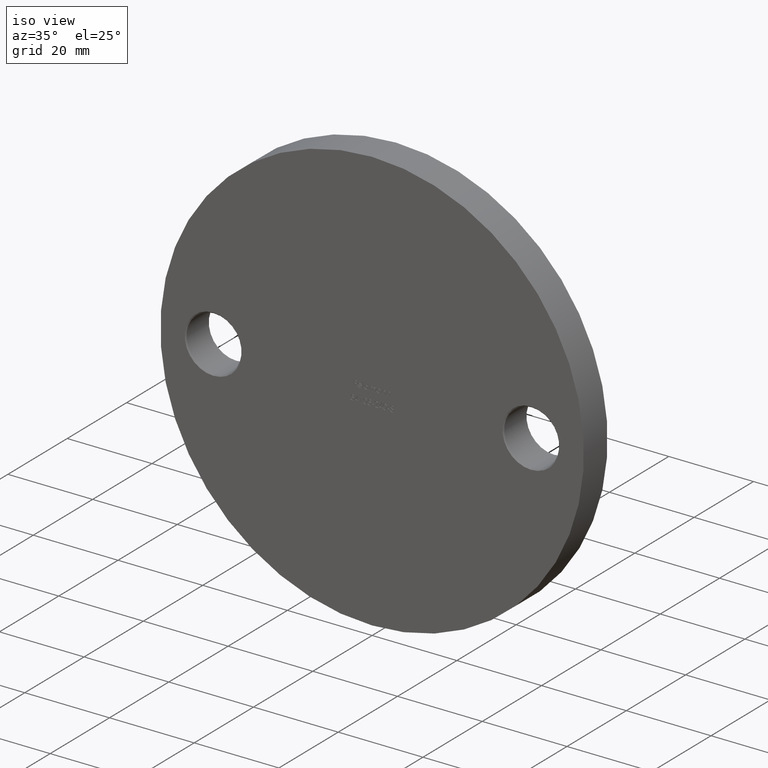
[diagram: clean part render]
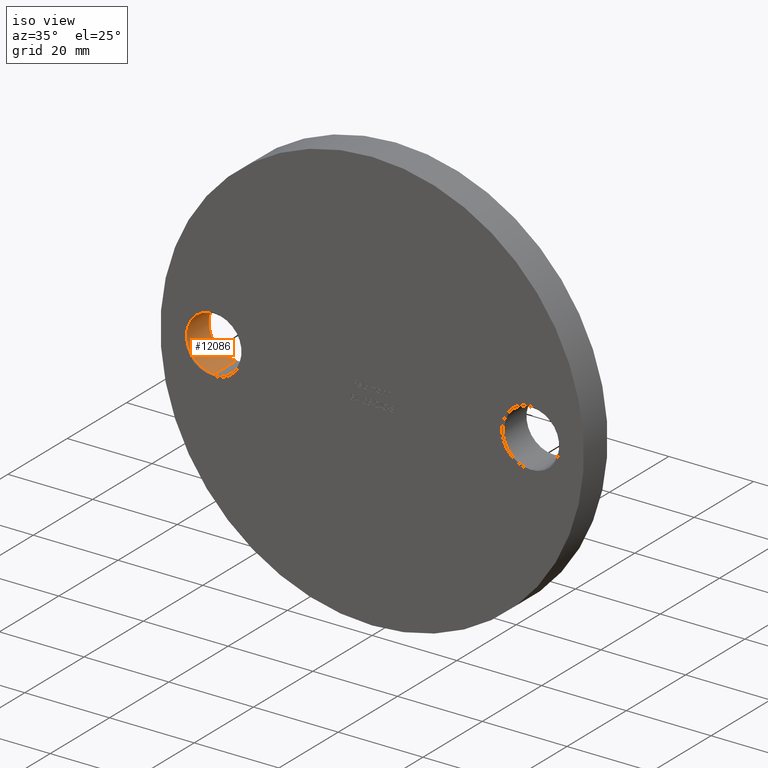
[diagram: same view with one face highlighted and labeled with its STEP entity id]
A machine part, iso view. The second image highlights one B-rep face of the part: STEP entity #12086.
In plain terms, the highlighted cylindrical surface (edge-blend (fillet) strip) has radius 6.5 mm, axis along (-0, -1, -0).
Its self-contained STEP definition (entity closure, byte-faithful):
#516 = CARTESIAN_POINT ( 'NONE',  ( -37.50000000000000000, 8.000000000000000000, 6.500000000000000888 ) ) ;
#1333 = CARTESIAN_POINT ( 'NONE',  ( -37.50000000000000000, 0.2499999999999828748, 0.000000000000000000 ) ) ;
#1733 = VERTEX_POINT ( 'NONE', #10265 ) ;
#2316 = DIRECTION ( 'NONE',  ( 0.000000000000000000, 0.000000000000000000, 1.000000000000000000 ) ) ;
#2401 = VERTEX_POINT ( 'NONE', #7417 ) ;
#2827 = DIRECTION ( 'NONE',  ( -0.000000000000000000, -1.000000000000000000, -0.000000000000000000 ) ) ;
#2939 = VECTOR ( 'NONE', #5782, 1000.000000000000000 ) ;
#2955 = LINE ( 'NONE', #516, #9566 ) ;
#3166 = EDGE_CURVE ( 'NONE', #3909, #11429, #9781, .T. ) ;
#3204 = CARTESIAN_POINT ( 'NONE',  ( -37.50000000000000000, 8.000000000000000000, 0.000000000000000000 ) ) ;
#3909 = VERTEX_POINT ( 'NONE', #10936 ) ;
#4239 = DIRECTION ( 'NONE',  ( 0.000000000000000000, 1.000000000000000000, 0.000000000000000000 ) ) ;
#4570 = ORIENTED_EDGE ( 'NONE', *, *, #3166, .T. ) ;
#4765 = DIRECTION ( 'NONE',  ( 0.000000000000000000, 0.000000000000000000, 1.000000000000000000 ) ) ;
#4811 = ORIENTED_EDGE ( 'NONE', *, *, #8444, .F. ) ;
#5428 = AXIS2_PLACEMENT_3D ( 'NONE', #1333, #8866, #2316 ) ;
#5782 = DIRECTION ( 'NONE',  ( -0.000000000000000000, -1.000000000000000000, -0.000000000000000000 ) ) ;
#5823 = LINE ( 'NONE', #13375, #2939 ) ;
#6098 = ORIENTED_EDGE ( 'NONE', *, *, #7432, .T. ) ;
#6329 = EDGE_LOOP ( 'NONE', ( #4570, #6098, #12841, #4811 ) ) ;
#7417 = CARTESIAN_POINT ( 'NONE',  ( -37.50000000000000000, 0.2499999999999828748, -6.500000000000000888 ) ) ;
#7432 = EDGE_CURVE ( 'NONE', #11429, #1733, #2955, .T. ) ;
#7821 = CARTESIAN_POINT ( 'NONE',  ( -37.50000000000000000, 7.749999999999982236, 6.500000000000000888 ) ) ;
#7967 = AXIS2_PLACEMENT_3D ( 'NONE', #3204, #8524, #9643 ) ;
#8444 = EDGE_CURVE ( 'NONE', #3909, #2401, #5823, .T. ) ;
#8524 = DIRECTION ( 'NONE',  ( -0.000000000000000000, -1.000000000000000000, -0.000000000000000000 ) ) ;
#8866 = DIRECTION ( 'NONE',  ( -0.000000000000000000, -1.000000000000000000, -0.000000000000000000 ) ) ;
#9566 = VECTOR ( 'NONE', #2827, 1000.000000000000000 ) ;
#9643 = DIRECTION ( 'NONE',  ( 0.000000000000000000, 0.000000000000000000, -1.000000000000000000 ) ) ;
#9781 = CIRCLE ( 'NONE', #10273, 6.500000000000000888 ) ;
#10265 = CARTESIAN_POINT ( 'NONE',  ( -37.50000000000000000, 0.2499999999999828748, 6.500000000000000888 ) ) ;
#10273 = AXIS2_PLACEMENT_3D ( 'NONE', #10724, #4239, #4765 ) ;
#10724 = CARTESIAN_POINT ( 'NONE',  ( -37.50000000000000000, 7.749999999999982236, 0.000000000000000000 ) ) ;
#10936 = CARTESIAN_POINT ( 'NONE',  ( -37.50000000000000000, 7.749999999999982236, -6.500000000000000888 ) ) ;
#11193 = CIRCLE ( 'NONE', #5428, 6.500000000000000888 ) ;
#11203 = CYLINDRICAL_SURFACE ( 'NONE', #7967, 6.500000000000000888 ) ;
#11429 = VERTEX_POINT ( 'NONE', #7821 ) ;
#12086 = ADVANCED_FACE ( 'NONE', ( #12880 ), #11203, .F. ) ;
#12841 = ORIENTED_EDGE ( 'NONE', *, *, #13308, .T. ) ;
#12880 = FACE_OUTER_BOUND ( 'NONE', #6329, .T. ) ;
#13308 = EDGE_CURVE ( 'NONE', #1733, #2401, #11193, .T. ) ;
#13375 = CARTESIAN_POINT ( 'NONE',  ( -37.50000000000000000, 8.000000000000000000, -6.500000000000000888 ) ) ;